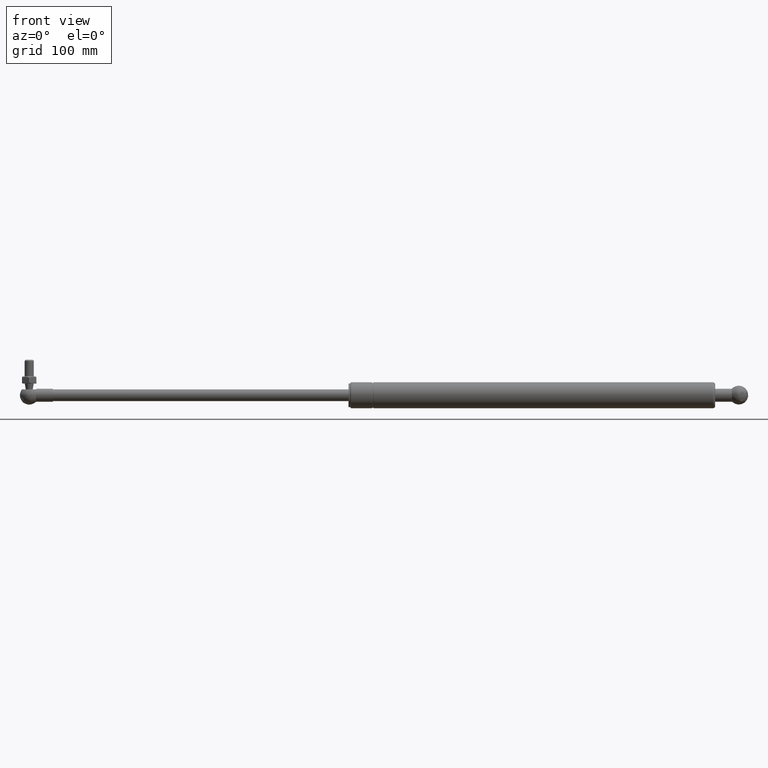
[diagram: clean part render]
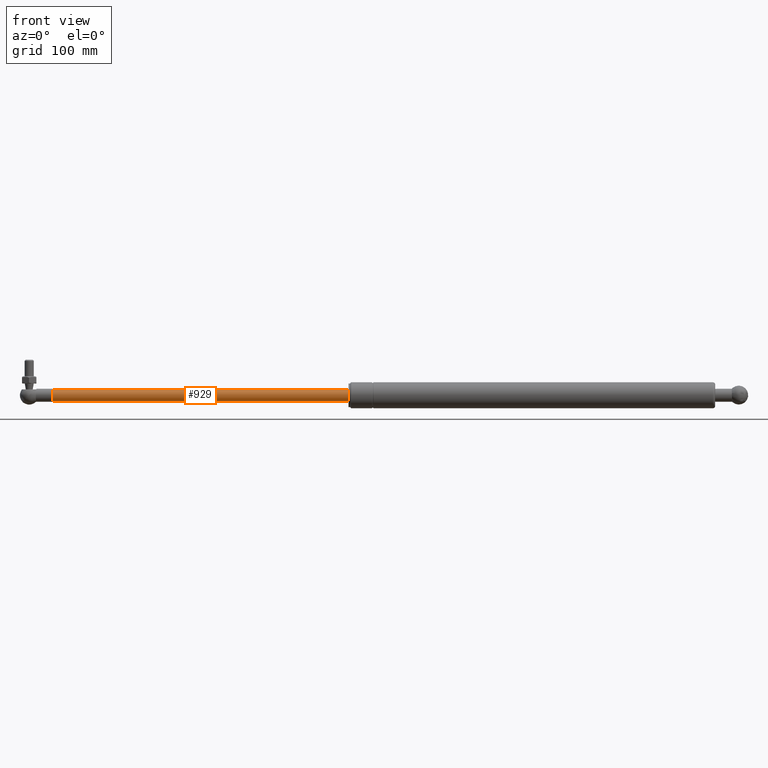
[diagram: same view with one face highlighted and labeled with its STEP entity id]
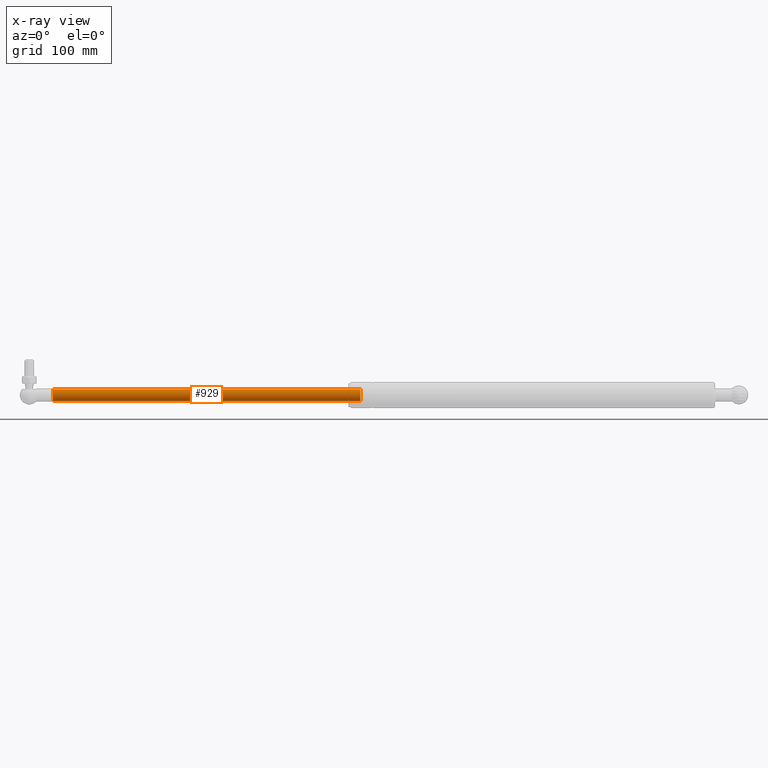
[diagram: x-ray of the same camera — body ghosted, the highlighted face saturated]
A machine part, front view. The second image highlights one B-rep face of the part: STEP entity #929.
The next image is the same camera in x-ray: the body ghosted, the highlighted face saturated — about 0% of this face is hidden behind the body in this view.
In plain terms, the highlighted cylindrical surface (bore or boss wall) has radius 5 mm, axis along (-1, -0, -0).
Its self-contained STEP definition (entity closure, byte-faithful):
#142=CYLINDRICAL_SURFACE('',#1034,5.00000000000002);
#178=FACE_BOUND('',#322,.T.);
#229=FACE_OUTER_BOUND('',#321,.T.);
#321=EDGE_LOOP('',(#676));
#322=EDGE_LOOP('',(#677));
#411=CIRCLE('',#1030,5.);
#413=CIRCLE('',#1035,5.00000000000003);
#470=VERTEX_POINT('',#1513);
#472=VERTEX_POINT('',#1520);
#550=EDGE_CURVE('',#470,#470,#411,.T.);
#552=EDGE_CURVE('',#472,#472,#413,.T.);
#676=ORIENTED_EDGE('',*,*,#552,.F.);
#677=ORIENTED_EDGE('',*,*,#550,.T.);
#929=ADVANCED_FACE('',(#229,#178),#142,.T.);
#1030=AXIS2_PLACEMENT_3D('',#1514,#1227,#1228);
#1034=AXIS2_PLACEMENT_3D('',#1519,#1235,#1236);
#1035=AXIS2_PLACEMENT_3D('',#1521,#1237,#1238);
#1227=DIRECTION('center_axis',(-1.,0.,0.));
#1228=DIRECTION('ref_axis',(0.,0.,1.));
#1235=DIRECTION('center_axis',(-1.,0.,0.));
#1236=DIRECTION('ref_axis',(0.,0.,1.));
#1237=DIRECTION('center_axis',(-1.,0.,0.));
#1238=DIRECTION('ref_axis',(0.,0.,1.));
#1513=CARTESIAN_POINT('',(260.,0.,5.));
#1514=CARTESIAN_POINT('Origin',(260.,0.,0.));
#1519=CARTESIAN_POINT('Origin',(130.,0.,0.));
#1520=CARTESIAN_POINT('',(7.1959436245814E-32,0.,5.00000000000003));
#1521=CARTESIAN_POINT('Origin',(0.,0.,0.));